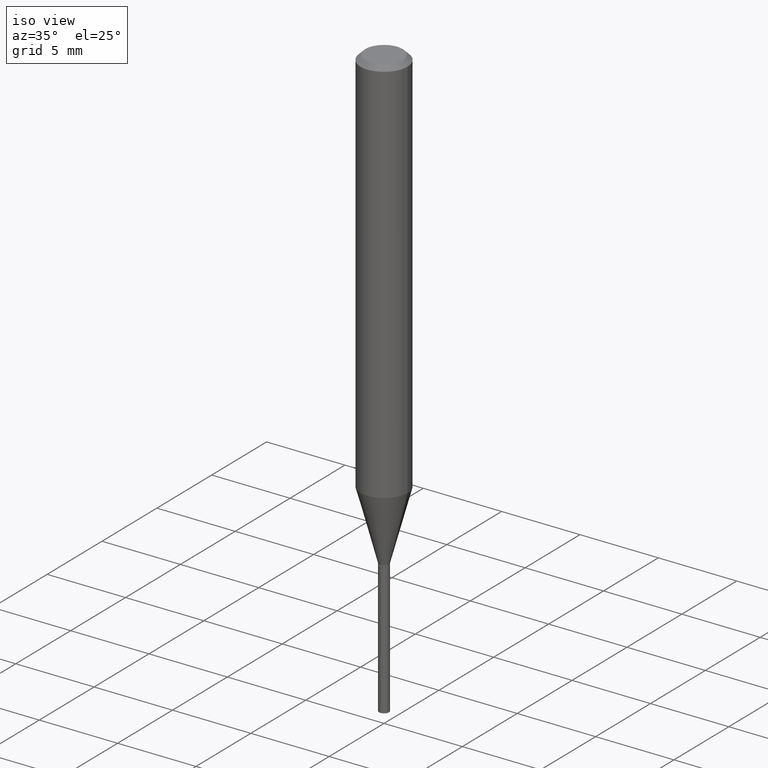
[diagram: clean part render]
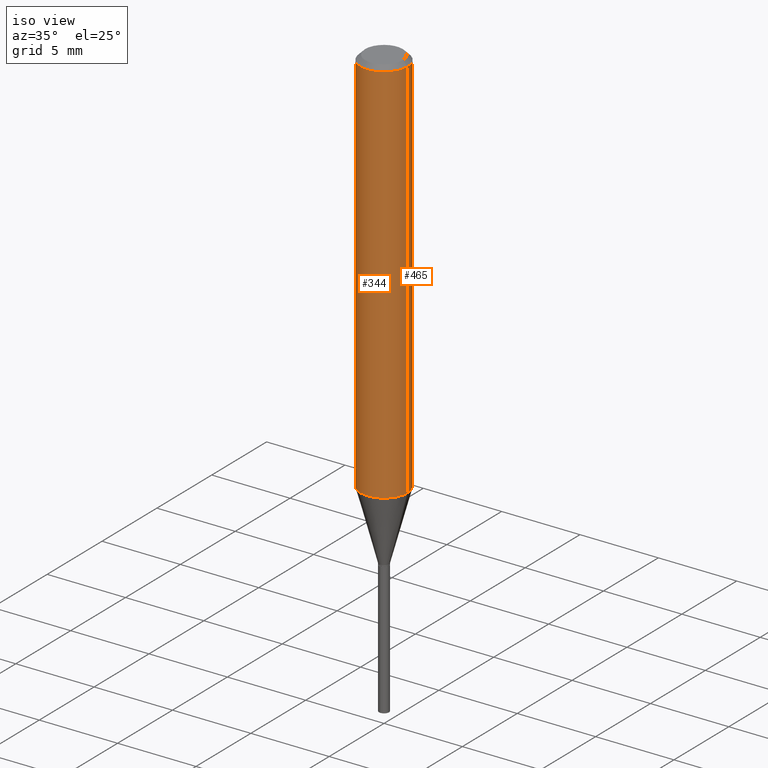
[diagram: same view with one multi-face feature highlighted, each face labeled with its STEP entity id]
A machine part, iso view. The highlighted faces form ONE feature: a constant-radius fillet chain: 2 tangent blend faces with common blend radius 1.4999 mm. The faces share edges in the B-rep.
Their STEP definitions:
[1] entity #344 (Cylinder):
#20 = EDGE_LOOP ( 'NONE', ( #187, #200, #219, #121 ) ) ;
#24 = EDGE_CURVE ( 'NONE', #212, #471, #254, .T. ) ;
#36 = DIRECTION ( 'NONE',  ( -2.445468806185136597E-29, 3.491481338843145583E-15, 1.000000000000000000 ) ) ;
#42 = CYLINDRICAL_SURFACE ( 'NONE', #357, 0.05905000000000006077 ) ;
#58 = CARTESIAN_POINT ( 'NONE',  ( 0.05905000000000011628, -3.832947619625843003E-15, -0.9796998298269117278 ) ) ;
#59 = EDGE_CURVE ( 'NONE', #81, #220, #179, .T. ) ;
#66 = CIRCLE ( 'NONE', #158, 0.05905000000000011628 ) ;
#67 = DIRECTION ( 'NONE',  ( -2.445468806185136877E-29, 3.491481338843145188E-15, 1.000000000000000000 ) ) ;
#81 = VERTEX_POINT ( 'NONE', #58 ) ;
#108 = CIRCLE ( 'NONE', #168, 0.05904999999999999832 ) ;
#111 = EDGE_CURVE ( 'NONE', #212, #81, #66, .T. ) ;
#114 = CARTESIAN_POINT ( 'NONE',  ( 2.888098660104662452E-31, -4.123439461173777798E-17, -0.01181000000000006697 ) ) ;
#121 = ORIENTED_EDGE ( 'NONE', *, *, #221, .F. ) ;
#158 = AXIS2_PLACEMENT_3D ( 'NONE', #409, #251, #257 ) ;
#168 = AXIS2_PLACEMENT_3D ( 'NONE', #114, #36, #343 ) ;
#176 = VECTOR ( 'NONE', #67, 39.37007874015748143 ) ;
#179 = LINE ( 'NONE', #404, #176 ) ;
#187 = ORIENTED_EDGE ( 'NONE', *, *, #24, .F. ) ;
#200 = ORIENTED_EDGE ( 'NONE', *, *, #111, .T. ) ;
#212 = VERTEX_POINT ( 'NONE', #261 ) ;
#219 = ORIENTED_EDGE ( 'NONE', *, *, #59, .T. ) ;
#220 = VERTEX_POINT ( 'NONE', #383 ) ;
#221 = EDGE_CURVE ( 'NONE', #471, #220, #108, .T. ) ;
#251 = DIRECTION ( 'NONE',  ( -2.445468806185136597E-29, 3.491481338843145583E-15, 1.000000000000000000 ) ) ;
#254 = LINE ( 'NONE', #288, #311 ) ;
#257 = DIRECTION ( 'NONE',  ( 1.000000000000000000, -6.982962677686266711E-15, 0.000000000000000000 ) ) ;
#261 = CARTESIAN_POINT ( 'NONE',  ( -0.05905000000000011628, -3.001028188042127801E-15, -0.9796998298269117278 ) ) ;
#277 = FACE_OUTER_BOUND ( 'NONE', #20, .T. ) ;
#288 = CARTESIAN_POINT ( 'NONE',  ( -0.05905000000000006077, 4.195754854663395916E-16, -2.904631170795524694E-30 ) ) ;
#310 = DIRECTION ( 'NONE',  ( 1.000000000000000000, -6.982962677686266711E-15, 4.876176775795935793E-29 ) ) ;
#311 = VECTOR ( 'NONE', #445, 39.37007874015748143 ) ;
#343 = DIRECTION ( 'NONE',  ( 1.000000000000000000, -6.982962677686266711E-15, 0.000000000000000000 ) ) ;
#344 = ADVANCED_FACE ( 'NONE', ( #277 ), #42, .T. ) ;
#353 = DIRECTION ( 'NONE',  ( -2.445468806185136597E-29, 3.491481338843145583E-15, 1.000000000000000000 ) ) ;
#357 = AXIS2_PLACEMENT_3D ( 'NONE', #398, #353, #310 ) ;
#383 = CARTESIAN_POINT ( 'NONE',  ( 0.05904999999999999832, -4.535783407291118600E-16, -0.01181000000000006697 ) ) ;
#398 = CARTESIAN_POINT ( 'NONE',  ( 0.000000000000000000, 0.000000000000000000, 0.000000000000000000 ) ) ;
#404 = CARTESIAN_POINT ( 'NONE',  ( 0.05905000000000006077, -4.123439461173744764E-16, 2.879382386107503023E-30 ) ) ;
#409 = CARTESIAN_POINT ( 'NONE',  ( 2.395825373266599197E-29, -3.420603673508467294E-15, -0.9796998298269117278 ) ) ;
#410 = CARTESIAN_POINT ( 'NONE',  ( -0.05904999999999999832, -1.311343548593762230E-15, -0.01181000000000006697 ) ) ;
#445 = DIRECTION ( 'NONE',  ( -2.445468806185136877E-29, 3.491481338843145188E-15, 1.000000000000000000 ) ) ;
#471 = VERTEX_POINT ( 'NONE', #410 ) ;
[2] entity #465 (Cylinder):
#2 = DIRECTION ( 'NONE',  ( -2.445468806185136597E-29, 3.491481338843145583E-15, 1.000000000000000000 ) ) ;
#24 = EDGE_CURVE ( 'NONE', #212, #471, #254, .T. ) ;
#58 = CARTESIAN_POINT ( 'NONE',  ( 0.05905000000000011628, -3.832947619625843003E-15, -0.9796998298269117278 ) ) ;
#59 = EDGE_CURVE ( 'NONE', #81, #220, #179, .T. ) ;
#65 = ORIENTED_EDGE ( 'NONE', *, *, #24, .T. ) ;
#67 = DIRECTION ( 'NONE',  ( -2.445468806185136877E-29, 3.491481338843145188E-15, 1.000000000000000000 ) ) ;
#81 = VERTEX_POINT ( 'NONE', #58 ) ;
#99 = CIRCLE ( 'NONE', #118, 0.05905000000000011628 ) ;
#103 = DIRECTION ( 'NONE',  ( 1.000000000000000000, -6.982962677686266711E-15, 4.876176775795935793E-29 ) ) ;
#118 = AXIS2_PLACEMENT_3D ( 'NONE', #316, #464, #391 ) ;
#123 = ORIENTED_EDGE ( 'NONE', *, *, #59, .F. ) ;
#127 = ORIENTED_EDGE ( 'NONE', *, *, #228, .F. ) ;
#138 = DIRECTION ( 'NONE',  ( -2.445468806185136597E-29, 3.491481338843145583E-15, 1.000000000000000000 ) ) ;
#176 = VECTOR ( 'NONE', #67, 39.37007874015748143 ) ;
#179 = LINE ( 'NONE', #404, #176 ) ;
#212 = VERTEX_POINT ( 'NONE', #261 ) ;
#214 = ORIENTED_EDGE ( 'NONE', *, *, #272, .T. ) ;
#220 = VERTEX_POINT ( 'NONE', #383 ) ;
#228 = EDGE_CURVE ( 'NONE', #220, #471, #452, .T. ) ;
#234 = EDGE_LOOP ( 'NONE', ( #214, #65, #127, #123 ) ) ;
#254 = LINE ( 'NONE', #288, #311 ) ;
#261 = CARTESIAN_POINT ( 'NONE',  ( -0.05905000000000011628, -3.001028188042127801E-15, -0.9796998298269117278 ) ) ;
#270 = AXIS2_PLACEMENT_3D ( 'NONE', #460, #2, #302 ) ;
#272 = EDGE_CURVE ( 'NONE', #81, #212, #99, .T. ) ;
#288 = CARTESIAN_POINT ( 'NONE',  ( -0.05905000000000006077, 4.195754854663395916E-16, -2.904631170795524694E-30 ) ) ;
#293 = FACE_OUTER_BOUND ( 'NONE', #234, .T. ) ;
#302 = DIRECTION ( 'NONE',  ( 1.000000000000000000, -6.982962677686266711E-15, 0.000000000000000000 ) ) ;
#311 = VECTOR ( 'NONE', #445, 39.37007874015748143 ) ;
#316 = CARTESIAN_POINT ( 'NONE',  ( 2.395825373266599197E-29, -3.420603673508467294E-15, -0.9796998298269117278 ) ) ;
#383 = CARTESIAN_POINT ( 'NONE',  ( 0.05904999999999999832, -4.535783407291118600E-16, -0.01181000000000006697 ) ) ;
#391 = DIRECTION ( 'NONE',  ( 1.000000000000000000, -6.982962677686266711E-15, 0.000000000000000000 ) ) ;
#403 = CARTESIAN_POINT ( 'NONE',  ( 0.000000000000000000, 0.000000000000000000, 0.000000000000000000 ) ) ;
#404 = CARTESIAN_POINT ( 'NONE',  ( 0.05905000000000006077, -4.123439461173744764E-16, 2.879382386107503023E-30 ) ) ;
#410 = CARTESIAN_POINT ( 'NONE',  ( -0.05904999999999999832, -1.311343548593762230E-15, -0.01181000000000006697 ) ) ;
#445 = DIRECTION ( 'NONE',  ( -2.445468806185136877E-29, 3.491481338843145188E-15, 1.000000000000000000 ) ) ;
#448 = CYLINDRICAL_SURFACE ( 'NONE', #463, 0.05905000000000006077 ) ;
#452 = CIRCLE ( 'NONE', #270, 0.05904999999999999832 ) ;
#460 = CARTESIAN_POINT ( 'NONE',  ( 2.888098660104662452E-31, -4.123439461173777798E-17, -0.01181000000000006697 ) ) ;
#463 = AXIS2_PLACEMENT_3D ( 'NONE', #403, #138, #103 ) ;
#464 = DIRECTION ( 'NONE',  ( -2.445468806185136597E-29, 3.491481338843145583E-15, 1.000000000000000000 ) ) ;
#465 = ADVANCED_FACE ( 'NONE', ( #293 ), #448, .T. ) ;
#471 = VERTEX_POINT ( 'NONE', #410 ) ;